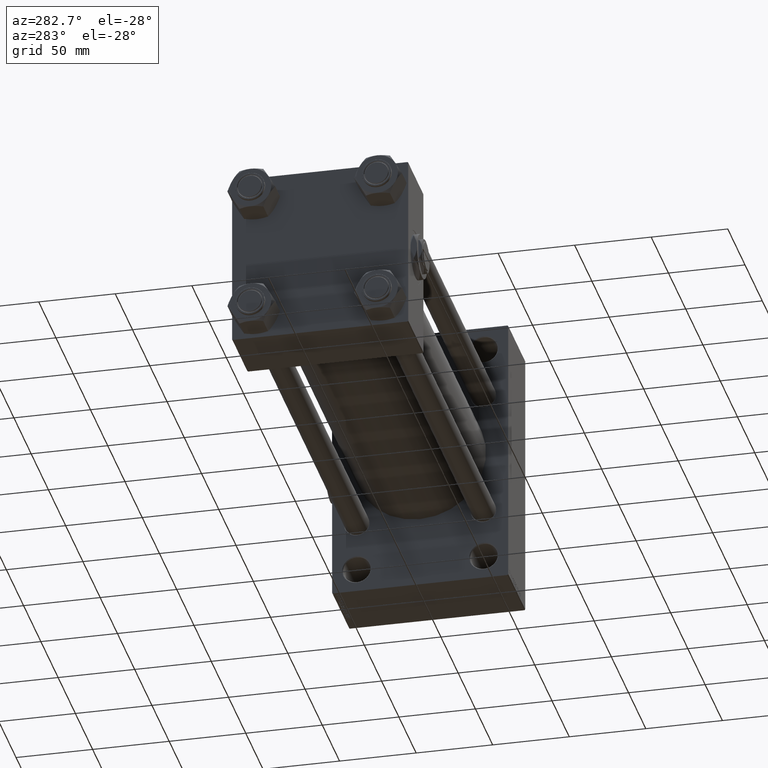
[diagram: clean part render]
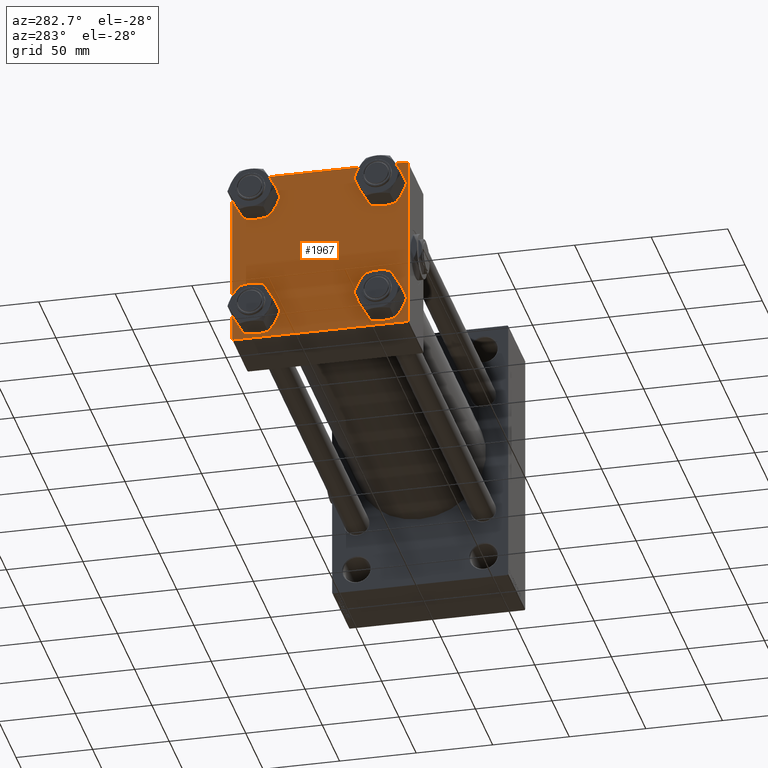
[diagram: same view with one face highlighted and labeled with its STEP entity id]
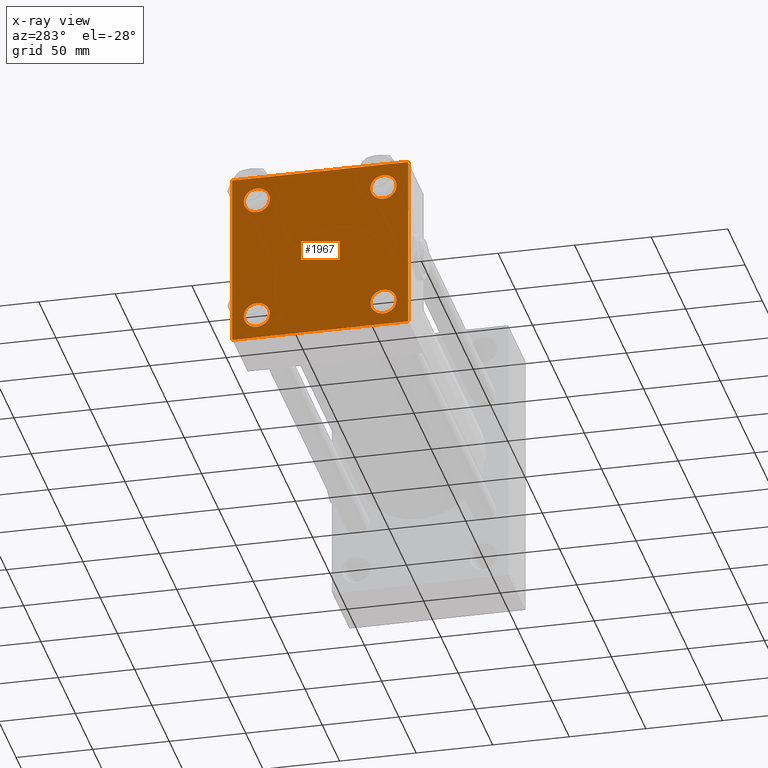
[diagram: x-ray of the same camera — body ghosted, the highlighted face saturated]
A machine part, auxiliary view. The second image highlights one B-rep face of the part: STEP entity #1967.
The next image is the same camera in x-ray: the body ghosted, the highlighted face saturated — about 0% of this face is hidden behind the body in this view.
In plain terms, the highlighted planar face has unit normal (-1, 0, 0).
Its self-contained STEP definition (entity closure, byte-faithful):
#100 = CARTESIAN_POINT ( 'NONE',  ( 0.000000000000000000, -41.34999999999998721, 49.85000000000000853 ) ) ;
#261 = FACE_BOUND ( 'NONE', #18232, .T. ) ;
#269 = DIRECTION ( 'NONE',  ( 0.000000000000000000, 0.000000000000000000, 1.000000000000000000 ) ) ;
#591 = EDGE_LOOP ( 'NONE', ( #44377, #44663 ) ) ;
#750 = DIRECTION ( 'NONE',  ( 1.000000000000000000, -0.000000000000000000, 0.000000000000000000 ) ) ;
#861 = AXIS2_PLACEMENT_3D ( 'NONE', #20001, #30454, #41649 ) ;
#976 = LINE ( 'NONE', #27341, #7877 ) ;
#1024 = CARTESIAN_POINT ( 'NONE',  ( 0.000000000000000000, -41.34999999999998721, 41.35000000000000853 ) ) ;
#1510 = EDGE_CURVE ( 'NONE', #7145, #26311, #46173, .T. ) ;
#1744 = CARTESIAN_POINT ( 'NONE',  ( 0.000000000000000000, 57.49999999999999289, 57.50000000000000711 ) ) ;
#1772 = DIRECTION ( 'NONE',  ( 0.000000000000000000, 0.000000000000000000, 1.000000000000000000 ) ) ;
#1967 = ADVANCED_FACE ( 'NONE', ( #45522, #20085, #33831, #261, #48764 ), #3978, .T. ) ;
#2456 = CARTESIAN_POINT ( 'NONE',  ( 0.000000000000000000, -41.34999999999998721, 32.85000000000001563 ) ) ;
#3324 = EDGE_CURVE ( 'NONE', #29995, #18728, #11966, .T. ) ;
#3865 = DIRECTION ( 'NONE',  ( 1.000000000000000000, -0.000000000000000000, 0.000000000000000000 ) ) ;
#3978 = PLANE ( 'NONE',  #28735 ) ;
#4004 = EDGE_CURVE ( 'NONE', #18728, #11392, #25422, .T. ) ;
#4017 = ORIENTED_EDGE ( 'NONE', *, *, #21686, .T. ) ;
#4836 = CIRCLE ( 'NONE', #861, 8.499999999999992895 ) ;
#5026 = EDGE_CURVE ( 'NONE', #28965, #37866, #34991, .T. ) ;
#5240 = VERTEX_POINT ( 'NONE', #100 ) ;
#5269 = ORIENTED_EDGE ( 'NONE', *, *, #3324, .T. ) ;
#5274 = CARTESIAN_POINT ( 'NONE',  ( 0.000000000000000000, 41.34999999999999432, 41.35000000000000142 ) ) ;
#5368 = VECTOR ( 'NONE', #17754, 1000.000000000000114 ) ;
#5903 = CARTESIAN_POINT ( 'NONE',  ( 0.000000000000000000, -57.00000000000003553, 57.49999999999999289 ) ) ;
#6301 = DIRECTION ( 'NONE',  ( 0.000000000000000000, 0.000000000000000000, 1.000000000000000000 ) ) ;
#6619 = ORIENTED_EDGE ( 'NONE', *, *, #34956, .T. ) ;
#6884 = DIRECTION ( 'NONE',  ( -0.000000000000000000, 0.7071067811865376918, 0.7071067811865573427 ) ) ;
#7145 = VERTEX_POINT ( 'NONE', #31993 ) ;
#7396 = VECTOR ( 'NONE', #6884, 1000.000000000000114 ) ;
#7863 = ORIENTED_EDGE ( 'NONE', *, *, #35074, .T. ) ;
#7877 = VECTOR ( 'NONE', #39032, 1000.000000000000114 ) ;
#8116 = CARTESIAN_POINT ( 'NONE',  ( 0.000000000000000000, 41.34999999999999432, 41.35000000000000142 ) ) ;
#8157 = ORIENTED_EDGE ( 'NONE', *, *, #9349, .T. ) ;
#8275 = AXIS2_PLACEMENT_3D ( 'NONE', #1024, #8724, #269 ) ;
#8724 = DIRECTION ( 'NONE',  ( 1.000000000000000000, -0.000000000000000000, 0.000000000000000000 ) ) ;
#8939 = DIRECTION ( 'NONE',  ( 0.000000000000000000, 0.000000000000000000, 1.000000000000000000 ) ) ;
#9349 = EDGE_CURVE ( 'NONE', #25457, #34310, #37298, .T. ) ;
#10871 = AXIS2_PLACEMENT_3D ( 'NONE', #8116, #3865, #23277 ) ;
#11201 = CARTESIAN_POINT ( 'NONE',  ( 0.000000000000000000, -57.50000000000000711, -57.00000000000000711 ) ) ;
#11229 = EDGE_CURVE ( 'NONE', #18074, #27788, #36562, .T. ) ;
#11261 = EDGE_LOOP ( 'NONE', ( #5269, #24500, #39134, #7863, #46661, #4017, #45695, #37814 ) ) ;
#11392 = VERTEX_POINT ( 'NONE', #15149 ) ;
#11966 = LINE ( 'NONE', #1744, #43853 ) ;
#12057 = LINE ( 'NONE', #47110, #44816 ) ;
#13540 = LINE ( 'NONE', #44127, #5368 ) ;
#13884 = CIRCLE ( 'NONE', #46476, 8.499999999999992895 ) ;
#14156 = CARTESIAN_POINT ( 'NONE',  ( 0.000000000000000000, 57.00000000000000711, 57.50000000000000711 ) ) ;
#14312 = DIRECTION ( 'NONE',  ( 1.000000000000000000, -0.000000000000000000, 0.000000000000000000 ) ) ;
#14484 = CARTESIAN_POINT ( 'NONE',  ( 0.000000000000000000, 41.34999999999999432, -41.35000000000000142 ) ) ;
#14561 = DIRECTION ( 'NONE',  ( 0.000000000000000000, 0.000000000000000000, 1.000000000000000000 ) ) ;
#15019 = AXIS2_PLACEMENT_3D ( 'NONE', #23609, #39287, #8939 ) ;
#15149 = CARTESIAN_POINT ( 'NONE',  ( 0.000000000000000000, 57.00000000000002132, -57.49999999999999289 ) ) ;
#15619 = EDGE_LOOP ( 'NONE', ( #8157, #44421 ) ) ;
#15755 = EDGE_CURVE ( 'NONE', #26311, #7145, #4836, .T. ) ;
#17475 = AXIS2_PLACEMENT_3D ( 'NONE', #5274, #35851, #1772 ) ;
#17754 = DIRECTION ( 'NONE',  ( 0.000000000000000000, -0.7071067811865474617, 0.7071067811865474617 ) ) ;
#18008 = CARTESIAN_POINT ( 'NONE',  ( 0.000000000000000000, -57.50000000000000711, 57.49999999999999289 ) ) ;
#18074 = VERTEX_POINT ( 'NONE', #39080 ) ;
#18204 = VERTEX_POINT ( 'NONE', #2456 ) ;
#18232 = EDGE_LOOP ( 'NONE', ( #40680, #6619 ) ) ;
#18728 = VERTEX_POINT ( 'NONE', #40956 ) ;
#19140 = CARTESIAN_POINT ( 'NONE',  ( 0.000000000000000000, 0.000000000000000000, 0.000000000000000000 ) ) ;
#20001 = CARTESIAN_POINT ( 'NONE',  ( 0.000000000000000000, 41.34999999999999432, -41.35000000000000142 ) ) ;
#20085 = FACE_BOUND ( 'NONE', #15619, .T. ) ;
#20683 = VERTEX_POINT ( 'NONE', #41519 ) ;
#21258 = DIRECTION ( 'NONE',  ( 0.000000000000000000, 0.000000000000000000, -1.000000000000000000 ) ) ;
#21288 = EDGE_CURVE ( 'NONE', #20683, #31595, #40188, .T. ) ;
#21686 = EDGE_CURVE ( 'NONE', #20683, #37866, #33744, .T. ) ;
#21787 = CARTESIAN_POINT ( 'NONE',  ( 0.000000000000000000, -41.34999999999998721, -41.35000000000000853 ) ) ;
#22151 = DIRECTION ( 'NONE',  ( -0.000000000000000000, -0.7071067811865376918, -0.7071067811865573427 ) ) ;
#22866 = EDGE_CURVE ( 'NONE', #18204, #5240, #30487, .T. ) ;
#22875 = DIRECTION ( 'NONE',  ( -0.000000000000000000, 0.000000000000000000, 1.000000000000000000 ) ) ;
#23277 = DIRECTION ( 'NONE',  ( 0.000000000000000000, 0.000000000000000000, 1.000000000000000000 ) ) ;
#23497 = DIRECTION ( 'NONE',  ( 0.000000000000000000, -1.000000000000000000, -1.206764157201257045E-16 ) ) ;
#23547 = DIRECTION ( 'NONE',  ( 0.000000000000000000, -1.000000000000000000, -1.206764157201257045E-16 ) ) ;
#23609 = CARTESIAN_POINT ( 'NONE',  ( 0.000000000000000000, -41.34999999999998721, -41.35000000000000853 ) ) ;
#23648 = DIRECTION ( 'NONE',  ( 0.000000000000000000, 0.000000000000000000, -1.000000000000000000 ) ) ;
#24016 = CARTESIAN_POINT ( 'NONE',  ( 0.000000000000000000, 57.49999999999999289, 57.00000000000003553 ) ) ;
#24077 = CARTESIAN_POINT ( 'NONE',  ( 0.000000000000000000, 41.34999999999999432, -49.85000000000000142 ) ) ;
#24214 = EDGE_LOOP ( 'NONE', ( #33557, #45325 ) ) ;
#24249 = CARTESIAN_POINT ( 'NONE',  ( 0.000000000000000000, -41.34999999999998721, -32.85000000000001563 ) ) ;
#24500 = ORIENTED_EDGE ( 'NONE', *, *, #4004, .T. ) ;
#24665 = EDGE_CURVE ( 'NONE', #11392, #40114, #12057, .T. ) ;
#25029 = EDGE_CURVE ( 'NONE', #5240, #18204, #13884, .T. ) ;
#25422 = LINE ( 'NONE', #48056, #33511 ) ;
#25457 = VERTEX_POINT ( 'NONE', #24249 ) ;
#26280 = CARTESIAN_POINT ( 'NONE',  ( -0.000000000000000000, -57.25000000000081712, 57.24999999999922551 ) ) ;
#26311 = VERTEX_POINT ( 'NONE', #24077 ) ;
#27341 = CARTESIAN_POINT ( 'NONE',  ( 0.000000000000000000, 57.24999999999922551, 57.25000000000081712 ) ) ;
#27788 = VERTEX_POINT ( 'NONE', #43131 ) ;
#28735 = AXIS2_PLACEMENT_3D ( 'NONE', #19140, #37311, #22875 ) ;
#28965 = VERTEX_POINT ( 'NONE', #14156 ) ;
#29694 = CARTESIAN_POINT ( 'NONE',  ( 0.000000000000000000, -57.00000000000000711, -57.50000000000000711 ) ) ;
#29995 = VERTEX_POINT ( 'NONE', #24016 ) ;
#30158 = CARTESIAN_POINT ( 'NONE',  ( 0.000000000000000000, -41.34999999999998721, -49.85000000000000853 ) ) ;
#30454 = DIRECTION ( 'NONE',  ( 1.000000000000000000, -0.000000000000000000, 0.000000000000000000 ) ) ;
#30487 = CIRCLE ( 'NONE', #8275, 8.499999999999992895 ) ;
#30597 = CARTESIAN_POINT ( 'NONE',  ( 0.000000000000000000, -41.34999999999998721, 41.35000000000000853 ) ) ;
#31094 = DIRECTION ( 'NONE',  ( 0.000000000000000000, 0.000000000000000000, 1.000000000000000000 ) ) ;
#31595 = VERTEX_POINT ( 'NONE', #11201 ) ;
#31993 = CARTESIAN_POINT ( 'NONE',  ( 0.000000000000000000, 41.34999999999999432, -32.85000000000000853 ) ) ;
#32667 = AXIS2_PLACEMENT_3D ( 'NONE', #14484, #37371, #6301 ) ;
#33511 = VECTOR ( 'NONE', #22151, 1000.000000000000114 ) ;
#33557 = ORIENTED_EDGE ( 'NONE', *, *, #25029, .T. ) ;
#33744 = LINE ( 'NONE', #26280, #7396 ) ;
#33831 = FACE_BOUND ( 'NONE', #591, .T. ) ;
#34310 = VERTEX_POINT ( 'NONE', #30158 ) ;
#34765 = AXIS2_PLACEMENT_3D ( 'NONE', #21787, #14312, #14561 ) ;
#34821 = EDGE_CURVE ( 'NONE', #34310, #25457, #46668, .T. ) ;
#34956 = EDGE_CURVE ( 'NONE', #27788, #18074, #36319, .T. ) ;
#34991 = LINE ( 'NONE', #35474, #39247 ) ;
#35074 = EDGE_CURVE ( 'NONE', #40114, #31595, #13540, .T. ) ;
#35474 = CARTESIAN_POINT ( 'NONE',  ( 0.000000000000000000, 57.49999999999999289, 57.50000000000000711 ) ) ;
#35851 = DIRECTION ( 'NONE',  ( 1.000000000000000000, -0.000000000000000000, 0.000000000000000000 ) ) ;
#36319 = CIRCLE ( 'NONE', #10871, 8.499999999999992895 ) ;
#36562 = CIRCLE ( 'NONE', #17475, 8.499999999999992895 ) ;
#37298 = CIRCLE ( 'NONE', #15019, 8.499999999999992895 ) ;
#37311 = DIRECTION ( 'NONE',  ( -1.000000000000000000, 0.000000000000000000, -0.000000000000000000 ) ) ;
#37371 = DIRECTION ( 'NONE',  ( 1.000000000000000000, -0.000000000000000000, 0.000000000000000000 ) ) ;
#37814 = ORIENTED_EDGE ( 'NONE', *, *, #41687, .T. ) ;
#37866 = VERTEX_POINT ( 'NONE', #5903 ) ;
#39032 = DIRECTION ( 'NONE',  ( 0.000000000000000000, 0.7071067811865573427, -0.7071067811865376918 ) ) ;
#39080 = CARTESIAN_POINT ( 'NONE',  ( 0.000000000000000000, 41.34999999999999432, 49.85000000000000142 ) ) ;
#39134 = ORIENTED_EDGE ( 'NONE', *, *, #24665, .T. ) ;
#39247 = VECTOR ( 'NONE', #23547, 1000.000000000000000 ) ;
#39287 = DIRECTION ( 'NONE',  ( 1.000000000000000000, -0.000000000000000000, 0.000000000000000000 ) ) ;
#40114 = VERTEX_POINT ( 'NONE', #29694 ) ;
#40188 = LINE ( 'NONE', #18008, #45502 ) ;
#40680 = ORIENTED_EDGE ( 'NONE', *, *, #11229, .T. ) ;
#40956 = CARTESIAN_POINT ( 'NONE',  ( 0.000000000000000000, 57.49999999999999289, -57.00000000000000711 ) ) ;
#41519 = CARTESIAN_POINT ( 'NONE',  ( 0.000000000000000000, -57.50000000000000711, 57.00000000000000711 ) ) ;
#41649 = DIRECTION ( 'NONE',  ( 0.000000000000000000, 0.000000000000000000, 1.000000000000000000 ) ) ;
#41687 = EDGE_CURVE ( 'NONE', #28965, #29995, #976, .T. ) ;
#43131 = CARTESIAN_POINT ( 'NONE',  ( 0.000000000000000000, 41.34999999999999432, 32.85000000000000853 ) ) ;
#43853 = VECTOR ( 'NONE', #23648, 1000.000000000000000 ) ;
#44127 = CARTESIAN_POINT ( 'NONE',  ( 0.000000000000000000, -57.25000000000000711, -57.25000000000000711 ) ) ;
#44377 = ORIENTED_EDGE ( 'NONE', *, *, #1510, .T. ) ;
#44421 = ORIENTED_EDGE ( 'NONE', *, *, #34821, .T. ) ;
#44663 = ORIENTED_EDGE ( 'NONE', *, *, #15755, .T. ) ;
#44816 = VECTOR ( 'NONE', #23497, 1000.000000000000000 ) ;
#45325 = ORIENTED_EDGE ( 'NONE', *, *, #22866, .T. ) ;
#45502 = VECTOR ( 'NONE', #21258, 1000.000000000000000 ) ;
#45522 = FACE_BOUND ( 'NONE', #24214, .T. ) ;
#45695 = ORIENTED_EDGE ( 'NONE', *, *, #5026, .F. ) ;
#46173 = CIRCLE ( 'NONE', #32667, 8.499999999999992895 ) ;
#46476 = AXIS2_PLACEMENT_3D ( 'NONE', #30597, #750, #31094 ) ;
#46661 = ORIENTED_EDGE ( 'NONE', *, *, #21288, .F. ) ;
#46668 = CIRCLE ( 'NONE', #34765, 8.499999999999992895 ) ;
#47110 = CARTESIAN_POINT ( 'NONE',  ( 0.000000000000000000, 57.49999999999999289, -57.49999999999999289 ) ) ;
#48056 = CARTESIAN_POINT ( 'NONE',  ( 0.000000000000000000, 57.25000000000081712, -57.24999999999922551 ) ) ;
#48764 = FACE_OUTER_BOUND ( 'NONE', #11261, .T. ) ;